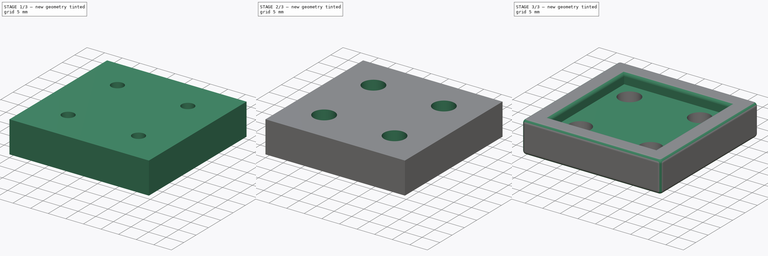
[diagram: build sequence overview — one tinted view per stage of 3, left to right]
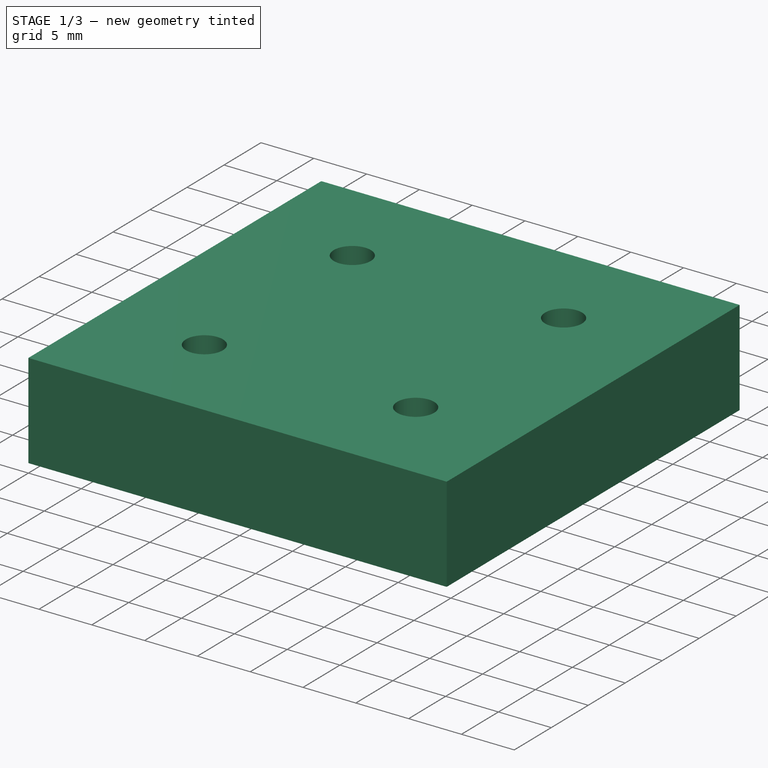
[diagram: stage 1 of 3 — iso view after this stage's code; geometry added in this stage tinted green]
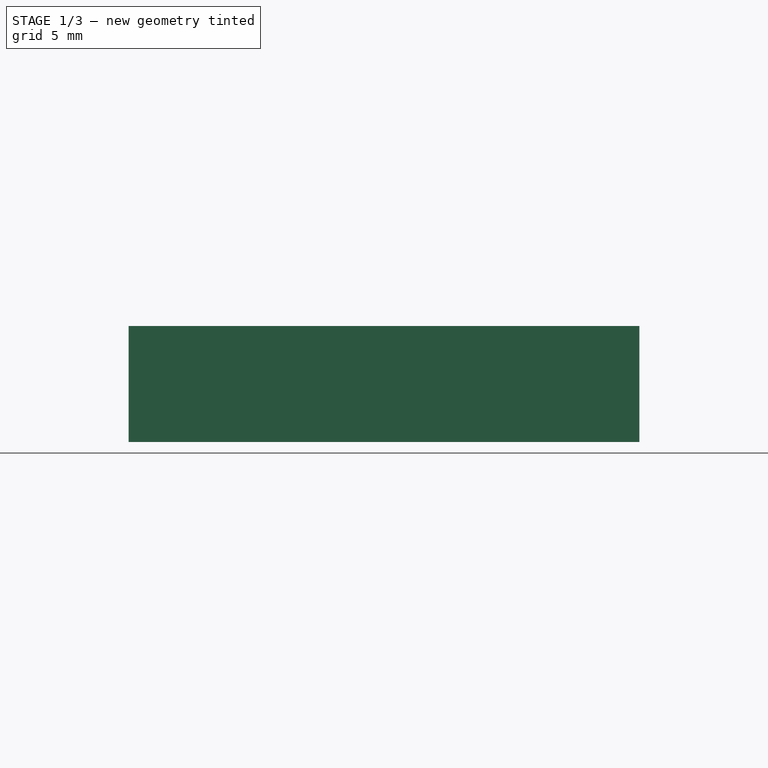
[diagram: stage 1 of 3 — front view after this stage's code; geometry added in this stage tinted green]
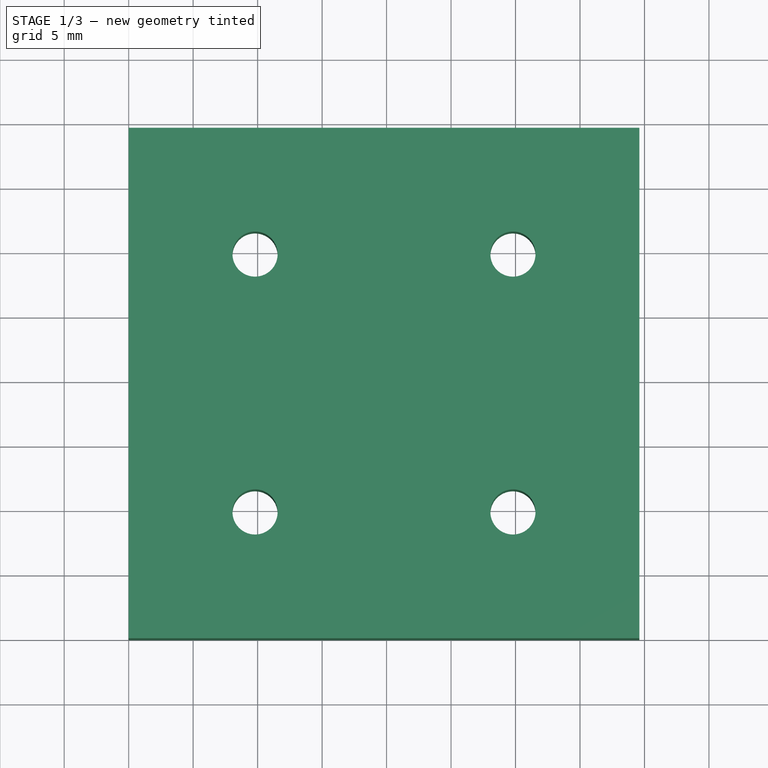
[diagram: stage 1 of 3 — top view after this stage's code; geometry added in this stage tinted green]
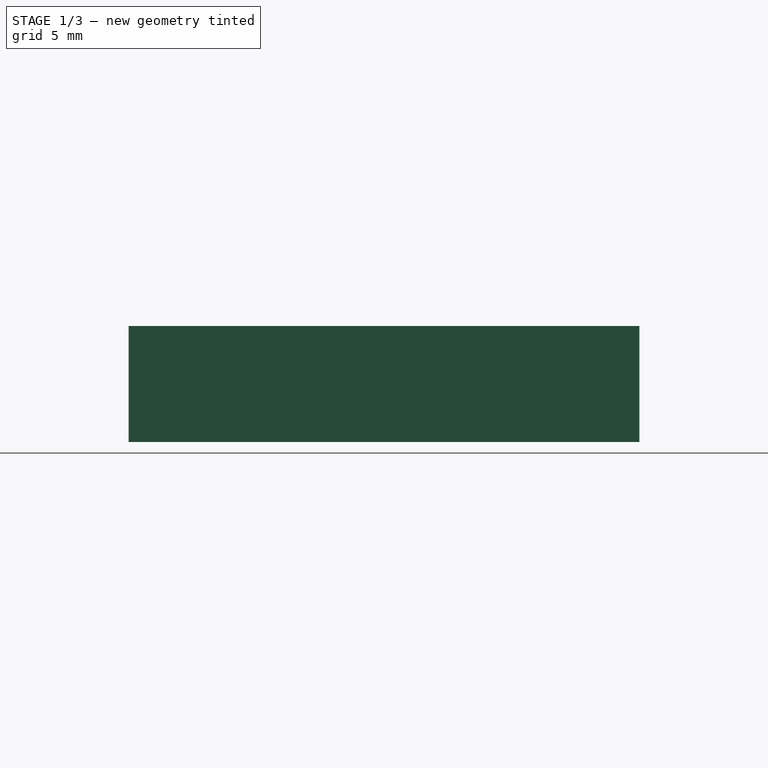
[diagram: stage 1 of 3 — right view after this stage's code; geometry added in this stage tinted green]
FCSTD DOCUMENT  (FreeCAD 0.16R6431 (Git))
Label: Connector
License: All rights reserved
LicenseURL: http://en.wikipedia.org/wiki/All_rights_reserved
objects: Sketcher::SketchObject×4, PartDesign::Pocket×3, PartDesign::Pad×1, PartDesign::Fillet×1
note: 13 computed .brp shape members not serialized (recipe doc carries the construction recipe); baked Part::Feature solids carry a one-line shape summary decoded from their .brp

FEATURE [Sketcher::SketchObject] Sketch
  sketch-geometry (4):
    g0: LineSegment StartX=0 StartY=0 StartZ=0 EndX=39.6 EndY=0 EndZ=0
    g1: LineSegment StartX=39.6 StartY=0 StartZ=0 EndX=39.6 EndY=39.6 EndZ=0
    g2: LineSegment StartX=39.6 StartY=39.6 StartZ=0 EndX=0 EndY=39.6 EndZ=0
    g3: LineSegment StartX=0 StartY=39.6 StartZ=0 EndX=0 EndY=0 EndZ=0
  constraints (11):
    c: Coincident(g0,g1)
    c: Coincident(g1,g2)
    c: Coincident(g2,g3)
    c: Coincident(g3,g0)
    c: Horizontal(g0)
    c: Horizontal(g2)
    c: Vertical(g1)
    c: Vertical(g3)
    c: Coincident(g0,g-1)
    c: DistanceX(g-1,g0) = 39.6
    c: DistanceY(g-1,g2) = 39.6
FEATURE [PartDesign::Pad] Pad
  Length = 9
  Length2 = 100
  Sketch = -> Sketch
  Type = 0
FEATURE [Sketcher::SketchObject] Sketch001
  Placement = pos=(0,0,9) rot=(0,0,1;0rad)
  Support = -> Pad [Face6]
  sketch-geometry (7):
    g0: Circle CenterX=9.8 CenterY=9.8 CenterZ=0 NormalX=0 NormalY=0 NormalZ=1 Radius=1.75
    g1: Circle CenterX=9.8 CenterY=29.8 CenterZ=0 NormalX=0 NormalY=0 NormalZ=1 Radius=1.75
    g2: LineSegment [constr] StartX=9.8 StartY=9.8 StartZ=0 EndX=9.8 EndY=29.8 EndZ=0
    g3: Circle CenterX=29.8 CenterY=9.8 CenterZ=0 NormalX=0 NormalY=0 NormalZ=1 Radius=1.75
    g4: LineSegment [constr] StartX=9.8 StartY=9.8 StartZ=0 EndX=29.8 EndY=9.8 EndZ=0
    g5: Circle CenterX=29.8 CenterY=29.8 CenterZ=0 NormalX=0 NormalY=0 NormalZ=1 Radius=1.75
    g6: LineSegment [constr] StartX=29.8 StartY=9.8 StartZ=0 EndX=29.8 EndY=29.8 EndZ=0
  constraints (18):
    c: Radius(g0) = 1.75
    c: Radius(g1) = 1.75
    c: Coincident(g0,g2)
    c: Coincident(g1,g2)
    c: Distance(g2) = 20
    c: Angle(g2) = 1.5708
    c: Radius(g3) = 1.75
    c: Coincident(g0,g4)
    c: Coincident(g3,g4)
    c: Equal(g4,g2)
    c: Perpendicular(g4,g2)
    c: Radius(g5) = 1.75
    c: Coincident(g3,g6)
    c: Coincident(g5,g6)
    c: Equal(g2,g6)
    c: Parallel(g6,g2)
    c: DistanceY(g-1,g0) = 9.8
    c: DistanceX(g-1,g0) = 9.8
FEATURE [PartDesign::Pocket] Pocket
  Length = 10
  Sketch = -> Sketch001
  Type = 0
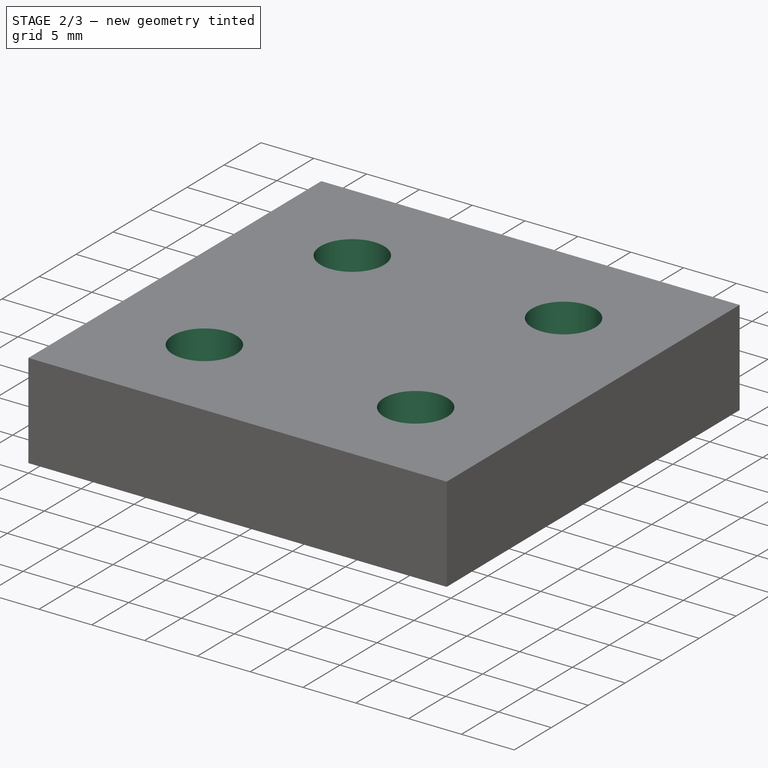
[diagram: stage 2 of 3 — iso view after this stage's code; geometry added in this stage tinted green]
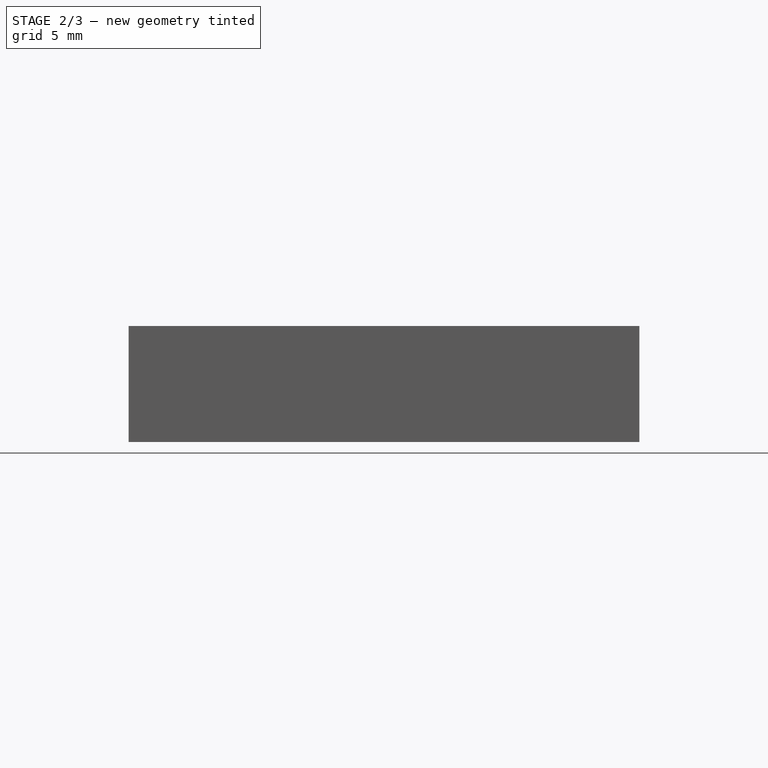
[diagram: stage 2 of 3 — front view after this stage's code; geometry added in this stage tinted green]
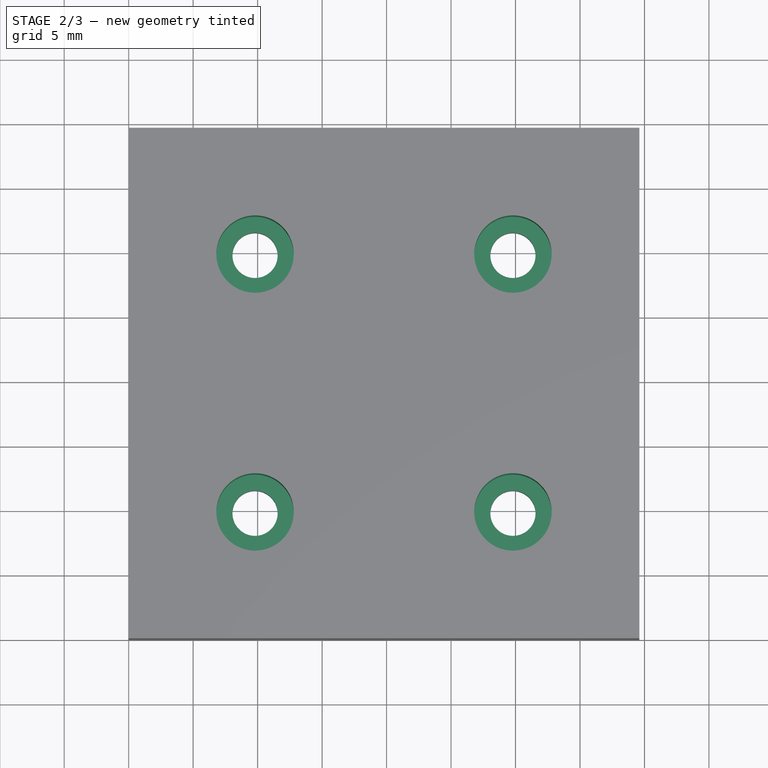
[diagram: stage 2 of 3 — top view after this stage's code; geometry added in this stage tinted green]
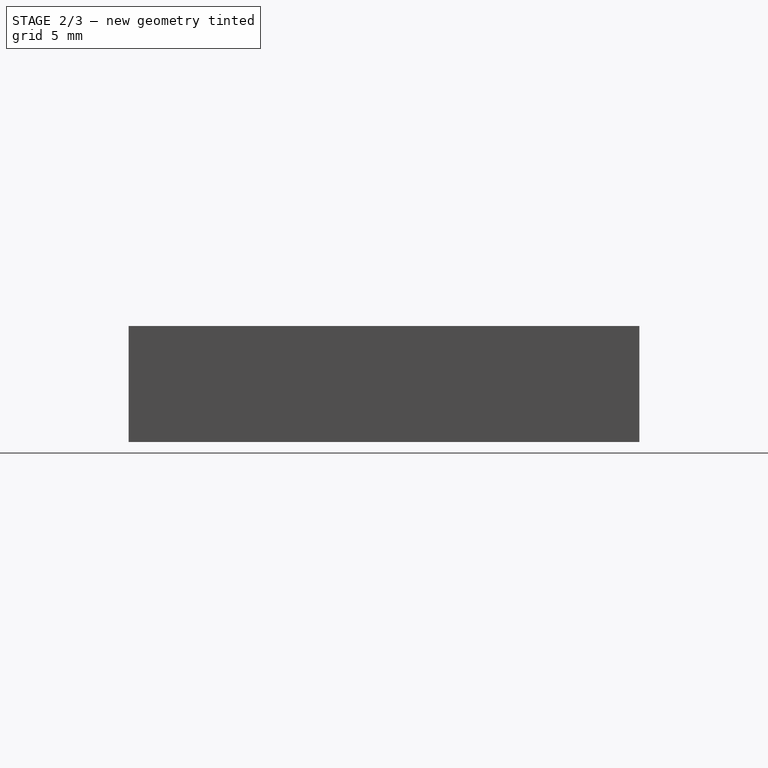
[diagram: stage 2 of 3 — right view after this stage's code; geometry added in this stage tinted green]
FEATURE [Sketcher::SketchObject] Sketch002
  Placement = pos=(0,0,9) rot=(0,0,1;0rad)
  Support = -> Pocket [Face5]
  sketch-geometry (7):
    g0: Circle CenterX=9.8 CenterY=9.8 CenterZ=0 NormalX=0 NormalY=0 NormalZ=1 Radius=3
    g1: Circle CenterX=9.8 CenterY=29.8 CenterZ=0 NormalX=0 NormalY=0 NormalZ=1 Radius=3
    g2: LineSegment [constr] StartX=9.8 StartY=9.8 StartZ=0 EndX=9.8 EndY=29.8 EndZ=0
    g3: Circle CenterX=29.8 CenterY=9.8 CenterZ=0 NormalX=0 NormalY=0 NormalZ=1 Radius=3
    g4: LineSegment [constr] StartX=9.8 StartY=9.8 StartZ=0 EndX=29.8 EndY=9.8 EndZ=0
    g5: Circle CenterX=29.8 CenterY=29.8 CenterZ=0 NormalX=0 NormalY=0 NormalZ=1 Radius=3
    g6: LineSegment [constr] StartX=29.8 StartY=9.8 StartZ=0 EndX=29.8 EndY=29.8 EndZ=0
  constraints (18):
    c: Radius(g0) = 3
    c: Radius(g1) = 3
    c: Coincident(g0,g2)
    c: Coincident(g1,g2)
    c: Distance(g2) = 20
    c: Angle(g2) = 1.5708
    c: Radius(g3) = 3
    c: Coincident(g0,g4)
    c: Coincident(g3,g4)
    c: Equal(g4,g2)
    c: Perpendicular(g4,g2)
    c: Radius(g5) = 3
    c: Coincident(g3,g6)
    c: Coincident(g5,g6)
    c: Equal(g2,g6)
    c: Parallel(g6,g2)
    c: DistanceY(g-1,g0) = 9.8
    c: DistanceX(g-1,g0) = 9.8
FEATURE [PartDesign::Pocket] Pocket001
  Length = 6
  Sketch = -> Sketch002
  Type = 0
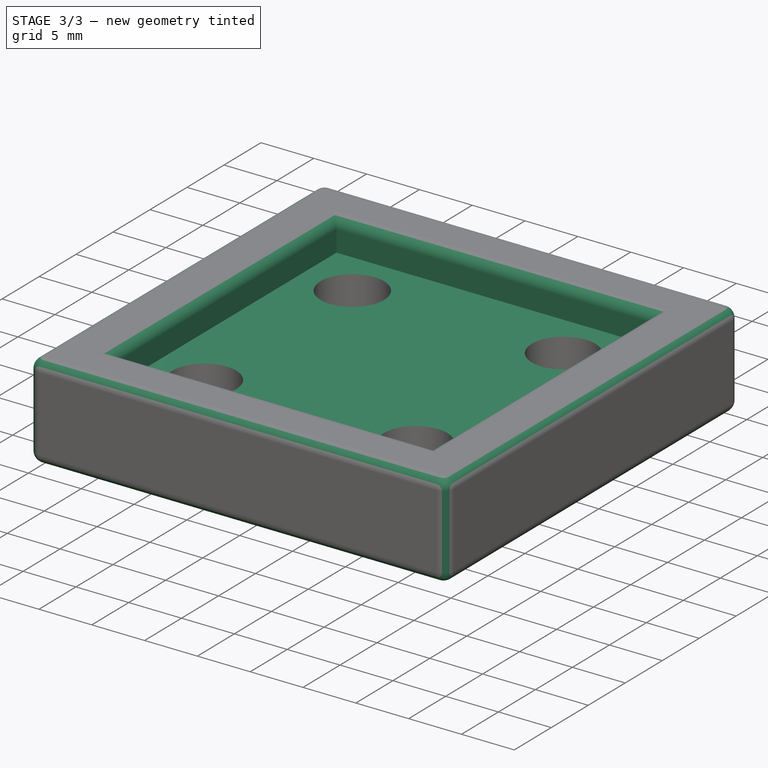
[diagram: stage 3 of 3 — iso view after this stage's code; geometry added in this stage tinted green]
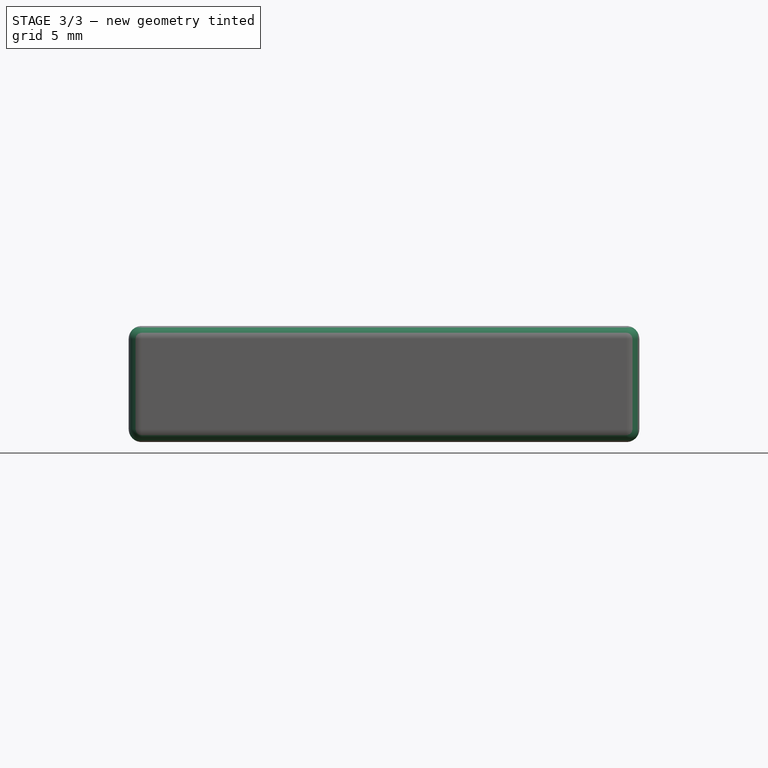
[diagram: stage 3 of 3 — front view after this stage's code; geometry added in this stage tinted green]
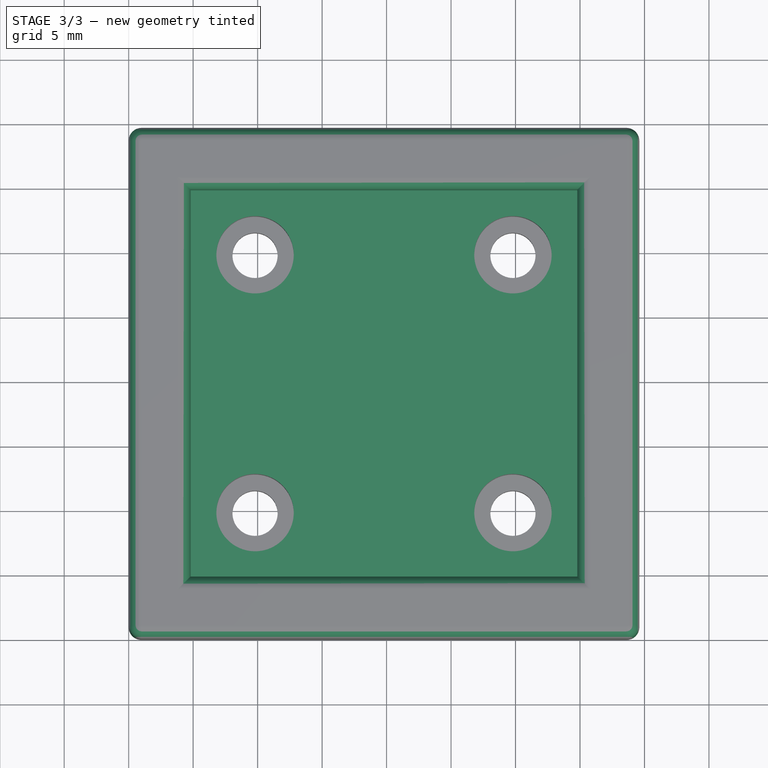
[diagram: stage 3 of 3 — top view after this stage's code; geometry added in this stage tinted green]
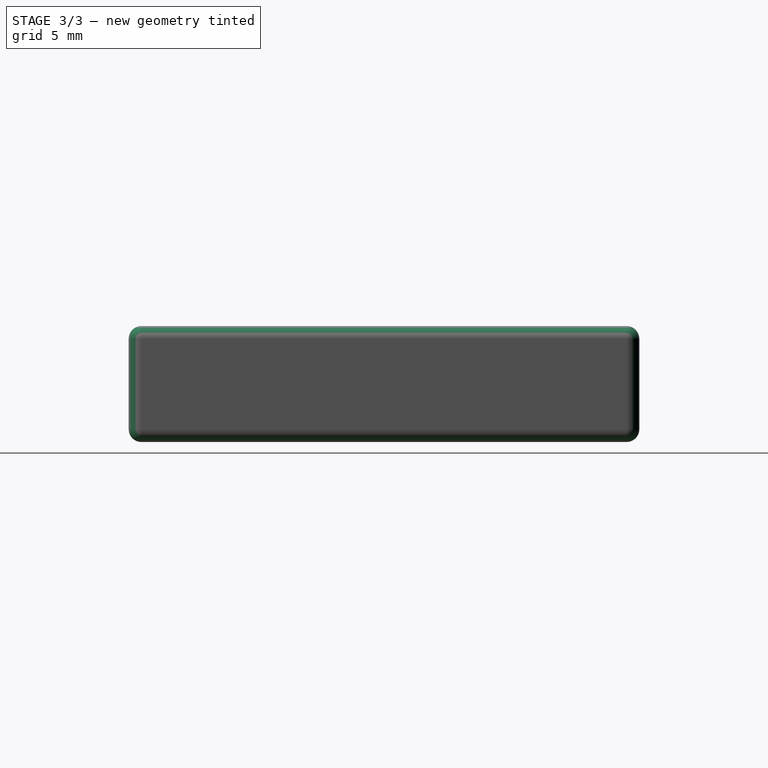
[diagram: stage 3 of 3 — right view after this stage's code; geometry added in this stage tinted green]
FEATURE [Sketcher::SketchObject] Sketch003
  Placement = pos=(0,0,9) rot=(0,0,1;0rad)
  Support = -> Pocket001 [Face5]
  sketch-geometry (4):
    g0: LineSegment StartX=4.8 StartY=4.8 StartZ=0 EndX=34.8 EndY=4.8 EndZ=0
    g1: LineSegment StartX=34.8 StartY=4.8 StartZ=0 EndX=34.8 EndY=34.8 EndZ=0
    g2: LineSegment StartX=34.8 StartY=34.8 StartZ=0 EndX=4.8 EndY=34.8 EndZ=0
    g3: LineSegment StartX=4.8 StartY=34.8 StartZ=0 EndX=4.8 EndY=4.8 EndZ=0
  constraints (12):
    c: Coincident(g0,g1)
    c: Coincident(g1,g2)
    c: Coincident(g2,g3)
    c: Coincident(g3,g0)
    c: Horizontal(g0)
    c: Horizontal(g2)
    c: Vertical(g1)
    c: Vertical(g3)
    c: DistanceX(g-1,g0) = 4.8
    c: DistanceX(g-1,g0) = 34.8
    c: DistanceY(g-1,g0) = 4.8
    c: DistanceY(g-1,g2) = 34.8
FEATURE [PartDesign::Pocket] Pocket002
  Length = 3
  Sketch = -> Sketch003
  Type = 0
FEATURE [PartDesign::Fillet] Fillet
  Base = -> Pocket002 [Edge5,Edge1,Edge8,Edge2,Edge9,Edge11,Edge6,Edge3,Edge4,Edge10,Edge16,Edge7,Edge20,Edge19,Edge18,Edge17]
  Radius = 1
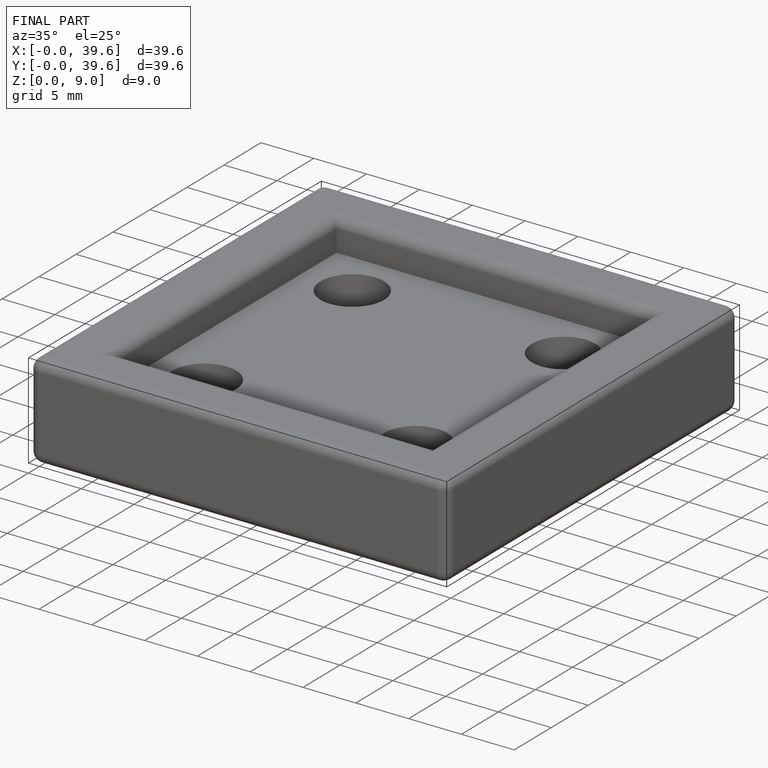
[diagram: finished part — iso view with bounding-box wireframe]
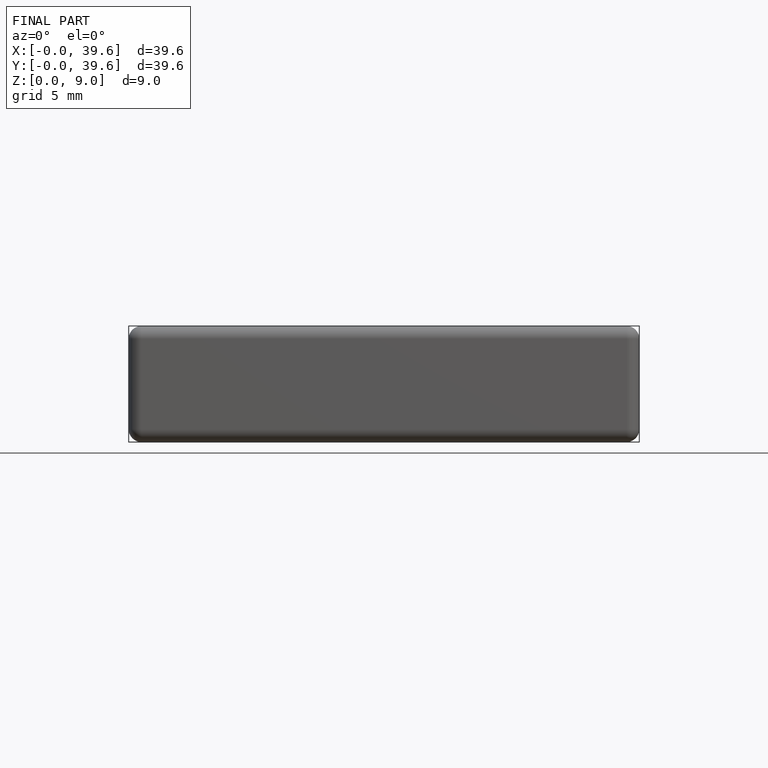
[diagram: finished part — front view with bounding-box wireframe]
